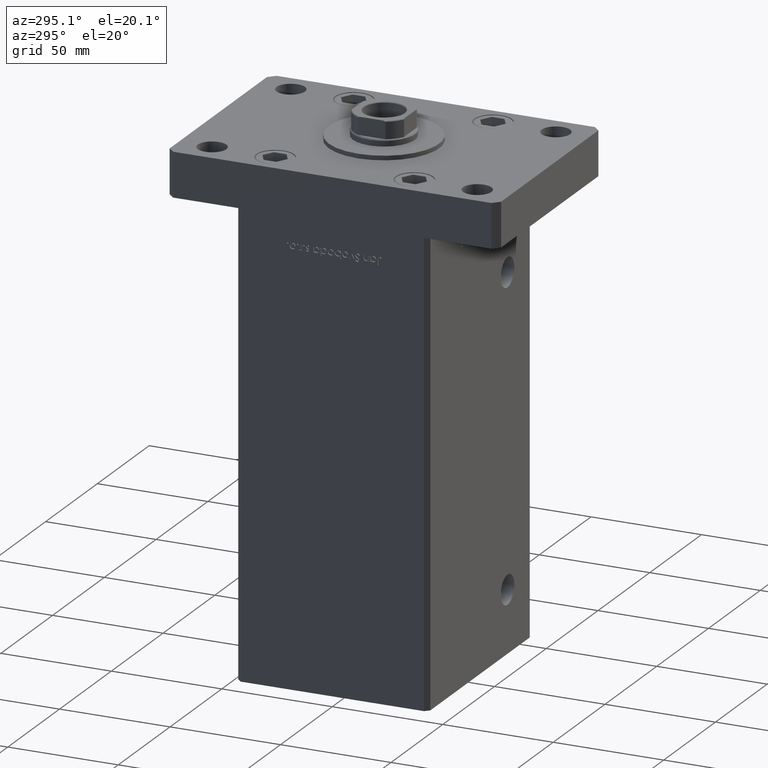
[diagram: clean part render]
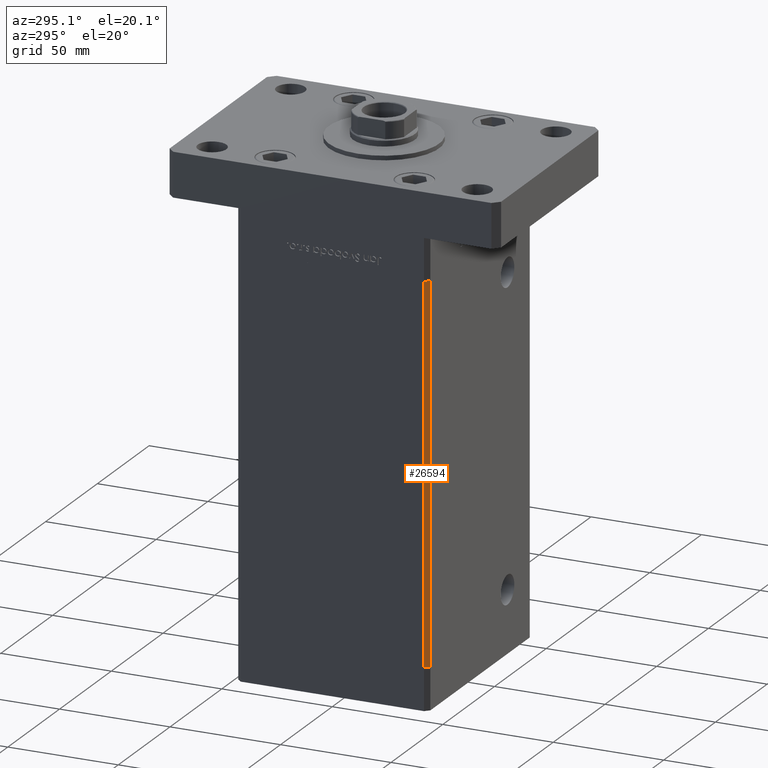
[diagram: same view with one face highlighted and labeled with its STEP entity id]
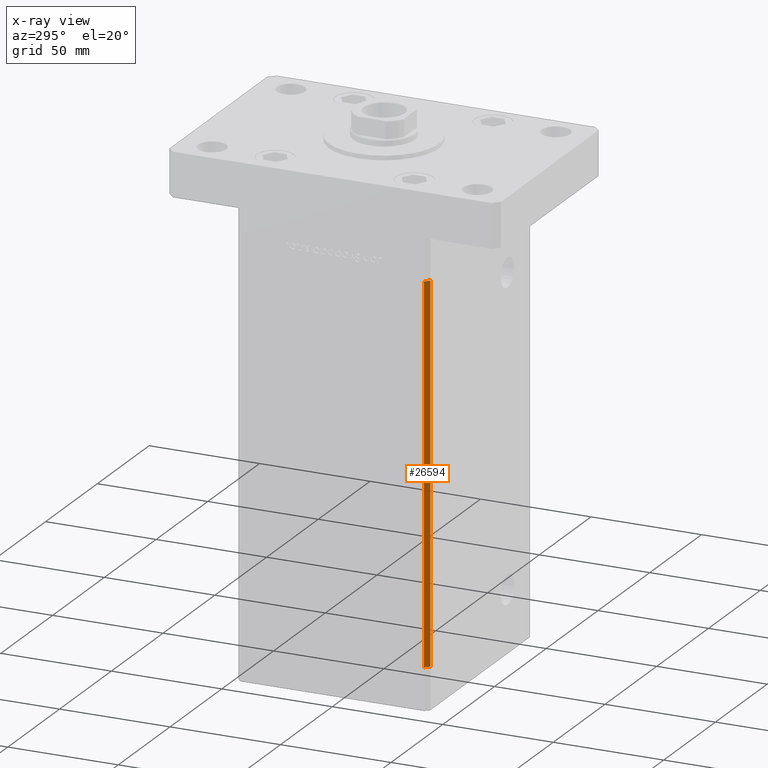
[diagram: x-ray of the same camera — body ghosted, the highlighted face saturated]
A machine part, auxiliary view. The second image highlights one B-rep face of the part: STEP entity #26594.
The next image is the same camera in x-ray: the body ghosted, the highlighted face saturated — about 0% of this face is hidden behind the body in this view.
In plain terms, the highlighted planar face has unit normal (0.7071, 0.7071, 0).
Its self-contained STEP definition (entity closure, byte-faithful):
#2333 = LINE ( 'NONE', #43260, #5205 ) ;
#3161 = PLANE ( 'NONE',  #25613 ) ;
#3338 = CARTESIAN_POINT ( 'NONE',  ( -47.99999999999998579, -43.50000000000000000, 0.000000000000000000 ) ) ;
#4968 = LINE ( 'NONE', #43129, #41394 ) ;
#5081 = VECTOR ( 'NONE', #47494, 1000.000000000000114 ) ;
#5205 = VECTOR ( 'NONE', #30980, 1000.000000000000000 ) ;
#8652 = CARTESIAN_POINT ( 'NONE',  ( -49.99999999999998579, -41.49999999999999289, 0.000000000000000000 ) ) ;
#11231 = CARTESIAN_POINT ( 'NONE',  ( -49.99999999999998579, -41.49999999999999289, 0.000000000000000000 ) ) ;
#14093 = EDGE_CURVE ( 'NONE', #49906, #44684, #15056, .T. ) ;
#15056 = LINE ( 'NONE', #46948, #18428 ) ;
#15139 = ORIENTED_EDGE ( 'NONE', *, *, #14093, .F. ) ;
#16985 = ORIENTED_EDGE ( 'NONE', *, *, #35447, .F. ) ;
#18428 = VECTOR ( 'NONE', #35212, 1000.000000000000114 ) ;
#19816 = CARTESIAN_POINT ( 'NONE',  ( -49.99999999999998579, -41.49999999999999289, 168.5000000000000000 ) ) ;
#22030 = VERTEX_POINT ( 'NONE', #3338 ) ;
#23913 = FACE_OUTER_BOUND ( 'NONE', #48217, .T. ) ;
#25613 = AXIS2_PLACEMENT_3D ( 'NONE', #19816, #36701, #40257 ) ;
#26594 = ADVANCED_FACE ( 'NONE', ( #23913 ), #3161, .F. ) ;
#30749 = CARTESIAN_POINT ( 'NONE',  ( -49.99999999999998579, -41.49999999999999289, 168.5000000000000000 ) ) ;
#30980 = DIRECTION ( 'NONE',  ( -0.000000000000000000, -0.000000000000000000, -1.000000000000000000 ) ) ;
#31357 = VERTEX_POINT ( 'NONE', #8652 ) ;
#35212 = DIRECTION ( 'NONE',  ( 0.7071067811865474617, -0.7071067811865474617, 0.000000000000000000 ) ) ;
#35447 = EDGE_CURVE ( 'NONE', #44684, #22030, #4968, .T. ) ;
#36701 = DIRECTION ( 'NONE',  ( 0.7071067811865475727, 0.7071067811865475727, -0.000000000000000000 ) ) ;
#40257 = DIRECTION ( 'NONE',  ( -0.7071067811865474617, 0.7071067811865474617, 0.000000000000000000 ) ) ;
#41394 = VECTOR ( 'NONE', #51303, 1000.000000000000000 ) ;
#41476 = ORIENTED_EDGE ( 'NONE', *, *, #51328, .T. ) ;
#42964 = CARTESIAN_POINT ( 'NONE',  ( -47.99999999999998579, -43.50000000000000000, 168.5000000000000000 ) ) ;
#43129 = CARTESIAN_POINT ( 'NONE',  ( -47.99999999999998579, -43.50000000000000000, 168.5000000000000000 ) ) ;
#43260 = CARTESIAN_POINT ( 'NONE',  ( -49.99999999999998579, -41.49999999999999289, 168.5000000000000000 ) ) ;
#44684 = VERTEX_POINT ( 'NONE', #42964 ) ;
#46948 = CARTESIAN_POINT ( 'NONE',  ( -49.99999999999998579, -41.49999999999999289, 168.5000000000000000 ) ) ;
#47494 = DIRECTION ( 'NONE',  ( 0.7071067811865474617, -0.7071067811865474617, 0.000000000000000000 ) ) ;
#47832 = EDGE_CURVE ( 'NONE', #31357, #22030, #48039, .T. ) ;
#48039 = LINE ( 'NONE', #11231, #5081 ) ;
#48217 = EDGE_LOOP ( 'NONE', ( #52264, #16985, #15139, #41476 ) ) ;
#49906 = VERTEX_POINT ( 'NONE', #30749 ) ;
#51303 = DIRECTION ( 'NONE',  ( -0.000000000000000000, -0.000000000000000000, -1.000000000000000000 ) ) ;
#51328 = EDGE_CURVE ( 'NONE', #49906, #31357, #2333, .T. ) ;
#52264 = ORIENTED_EDGE ( 'NONE', *, *, #47832, .T. ) ;